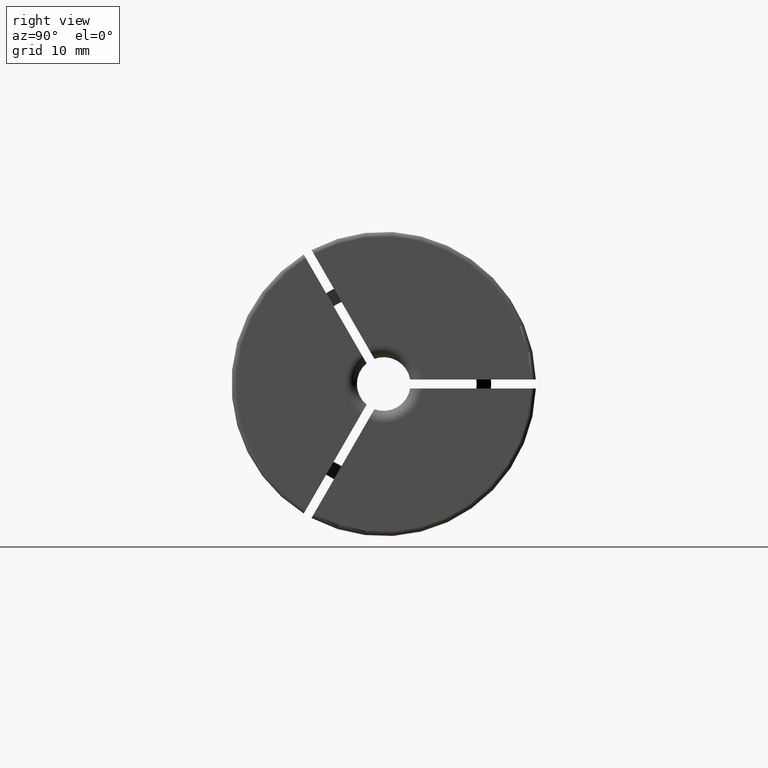
[diagram: clean part render]
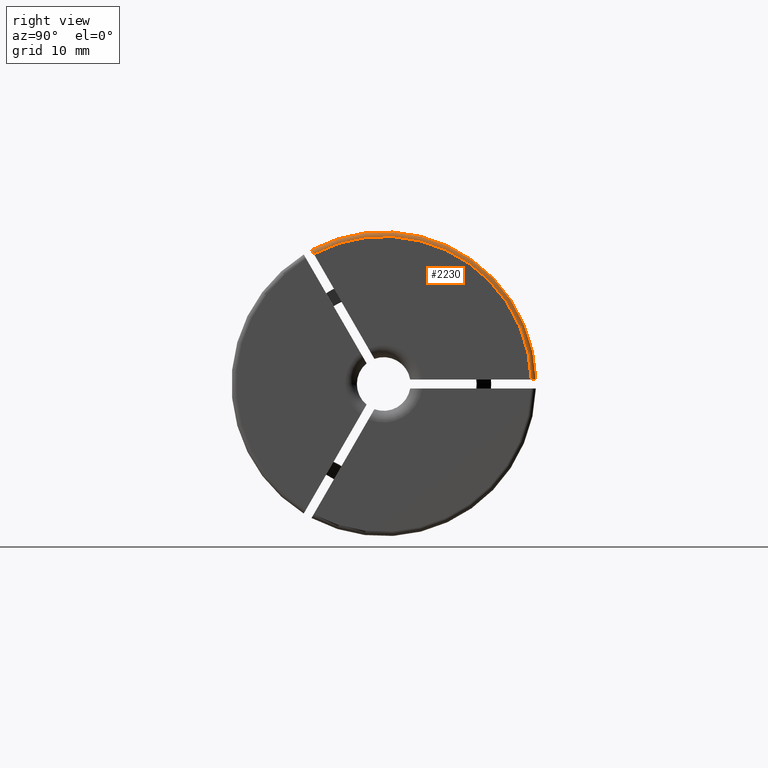
[diagram: same view with one face highlighted and labeled with its STEP entity id]
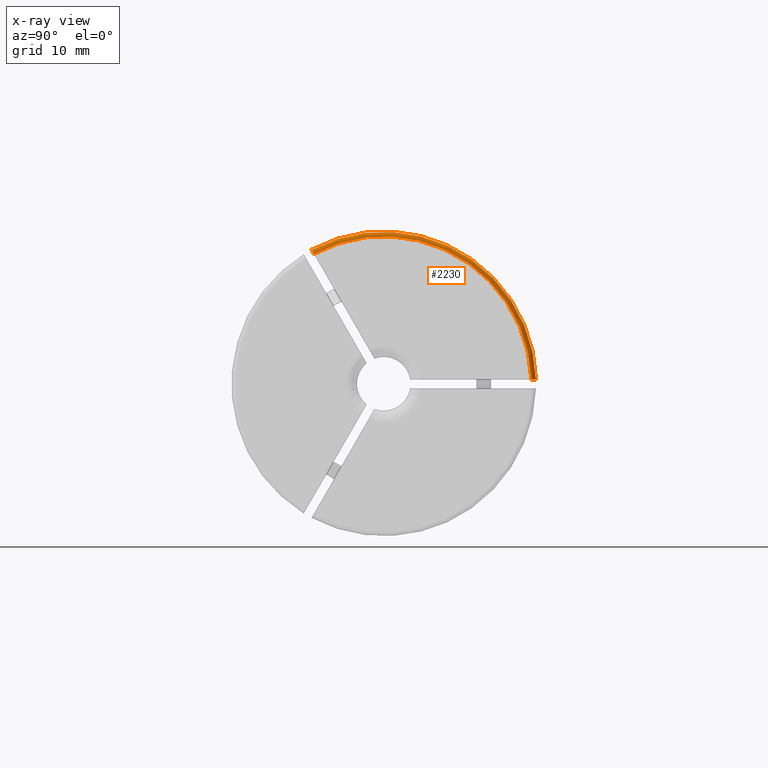
[diagram: x-ray of the same camera — body ghosted, the highlighted face saturated]
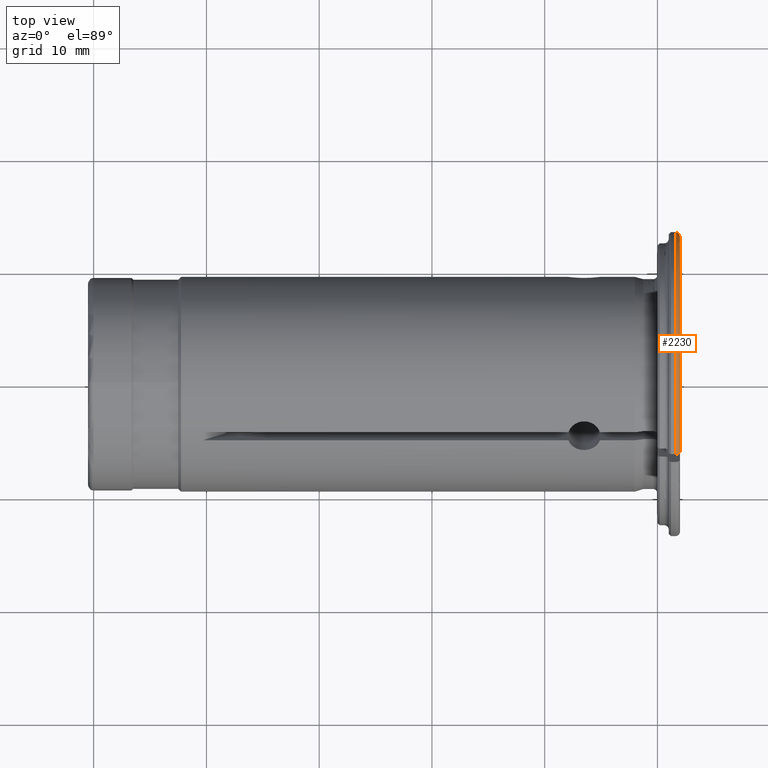
[diagram: same view with one face highlighted and labeled with its STEP entity id]
A machine part, right view. The second image highlights one B-rep face of the part: STEP entity #2230.
The next image is the same camera in x-ray: the body ghosted, the highlighted face saturated — about 0% of this face is hidden behind the body in this view.
A second angle (top view) of the same face is appended — the face is thin or edge-on in the first view.
In plain terms, the highlighted toroidal blend (fillet) surface has major radius 13.1 mm and minor (blend) radius 0.4 mm.
Its self-contained STEP definition (entity closure, byte-faithful):
#443=CARTESIAN_POINT('',(1.6E0,-6.400626224930E0,1.188620982184E1));
#444=CARTESIAN_POINT('',(1.630421182004E0,-6.400626224930E0,1.188620982184E1));
#445=CARTESIAN_POINT('',(1.689547424525E0,-6.397252468767E0,1.188036630475E1));
#446=CARTESIAN_POINT('',(1.775108403029E0,-6.382322546494E0,1.185450692082E1));
#447=CARTESIAN_POINT('',(1.851485292286E0,-6.358289965561E0,1.181288126961E1));
#448=CARTESIAN_POINT('',(1.915338649625E0,-6.326351910163E0,1.175756293496E1));
#449=CARTESIAN_POINT('',(1.963382903648E0,-6.288155163233E0,1.169140422860E1));
#450=CARTESIAN_POINT('',(1.993241837519E0,-6.245363161994E0,1.161728630829E1));
#451=CARTESIAN_POINT('',(2.E0,-6.215767132211E0,1.156602448101E1));
#452=CARTESIAN_POINT('',(2.E0,-6.200535691325E0,1.153964285152E1));
#454=CARTESIAN_POINT('',(1.6E0,0.E0,0.E0));
#455=DIRECTION('',(-1.E0,0.E0,0.E0));
#456=DIRECTION('',(0.E0,-4.741204611059E-1,8.804599868027E-1));
#457=AXIS2_PLACEMENT_3D('',#454,#455,#456);
#459=CARTESIAN_POINT('',(2.E0,1.309389170568E1,4.E-1));
#460=CARTESIAN_POINT('',(2.E0,1.312435764376E1,4.E-1));
#461=CARTESIAN_POINT('',(1.993240669913E0,1.318355534141E1,4.E-1));
#462=CARTESIAN_POINT('',(1.963374701500E0,1.326914945184E1,4.E-1));
#463=CARTESIAN_POINT('',(1.915321939842E0,1.334554547626E1,4.E-1));
#464=CARTESIAN_POINT('',(1.851464047321E0,1.340941687698E1,4.E-1));
#465=CARTESIAN_POINT('',(1.775089927542E0,1.345747345796E1,4.E-1));
#466=CARTESIAN_POINT('',(1.689538973985E0,1.348732638743E1,4.E-1));
#467=CARTESIAN_POINT('',(1.630418228465E0,1.349407277289E1,4.E-1));
#468=CARTESIAN_POINT('',(1.6E0,1.349407277289E1,4.E-1));
#470=CARTESIAN_POINT('',(2.E0,0.E0,0.E0));
#471=DIRECTION('',(1.E0,0.E0,0.E0));
#472=DIRECTION('',(0.E0,9.995337179906E-1,3.053435114504E-2));
#473=AXIS2_PLACEMENT_3D('',#470,#471,#472);
#1612=CARTESIAN_POINT('',(2.E0,1.309389170568E1,4.E-1));
#1614=VERTEX_POINT('',#1612);
#1617=CARTESIAN_POINT('',(1.6E0,1.349407277289E1,4.E-1));
#1619=VERTEX_POINT('',#1617);
#1709=CARTESIAN_POINT('',(2.E0,-6.200535691325E0,1.153964285152E1));
#1711=VERTEX_POINT('',#1709);
#1718=CARTESIAN_POINT('',(1.6E0,-6.400626224930E0,1.188620982184E1));
#1720=VERTEX_POINT('',#1718);
#2217=CARTESIAN_POINT('',(1.6E0,0.E0,0.E0));
#2218=DIRECTION('',(1.E0,0.E0,0.E0));
#2219=DIRECTION('',(0.E0,9.999747279428E-1,7.109393490572E-3));
#2220=AXIS2_PLACEMENT_3D('',#2217,#2218,#2219);
#2221=TOROIDAL_SURFACE('',#2220,1.31E1,4.E-1);
#2222=ORIENTED_EDGE('',*,*,#1988,.F.);
#2224=ORIENTED_EDGE('',*,*,#2223,.T.);
#2226=ORIENTED_EDGE('',*,*,#2225,.F.);
#2227=ORIENTED_EDGE('',*,*,#2179,.T.);
#2228=EDGE_LOOP('',(#2222,#2224,#2226,#2227));
#2229=FACE_OUTER_BOUND('',#2228,.F.);
#2230=ADVANCED_FACE('',(#2229),#2221,.T.);
#453=B_SPLINE_CURVE_WITH_KNOTS('',3,(#443,#444,#445,#446,#447,#448,#449,#450,
#451,#452),.UNSPECIFIED.,.F.,.F.,(4,1,1,1,1,1,1,4),(0.E0,1.428571428571E-1,
2.857142857143E-1,4.285714285714E-1,5.714285714286E-1,7.142857142857E-1,
8.571428571429E-1,1.E0),.UNSPECIFIED.);
#458=CIRCLE('',#457,1.35E1);
#469=B_SPLINE_CURVE_WITH_KNOTS('',3,(#459,#460,#461,#462,#463,#464,#465,#466,
#467,#468),.UNSPECIFIED.,.F.,.F.,(4,1,1,1,1,1,1,4),(0.E0,1.428571428571E-1,
2.857142857143E-1,4.285714285714E-1,5.714285714286E-1,7.142857142857E-1,
8.571428571429E-1,1.E0),.UNSPECIFIED.);
#474=CIRCLE('',#473,1.31E1);
#1988=EDGE_CURVE('',#1720,#1711,#453,.T.);
#2179=EDGE_CURVE('',#1614,#1711,#474,.T.);
#2223=EDGE_CURVE('',#1720,#1619,#458,.T.);
#2225=EDGE_CURVE('',#1614,#1619,#469,.T.);